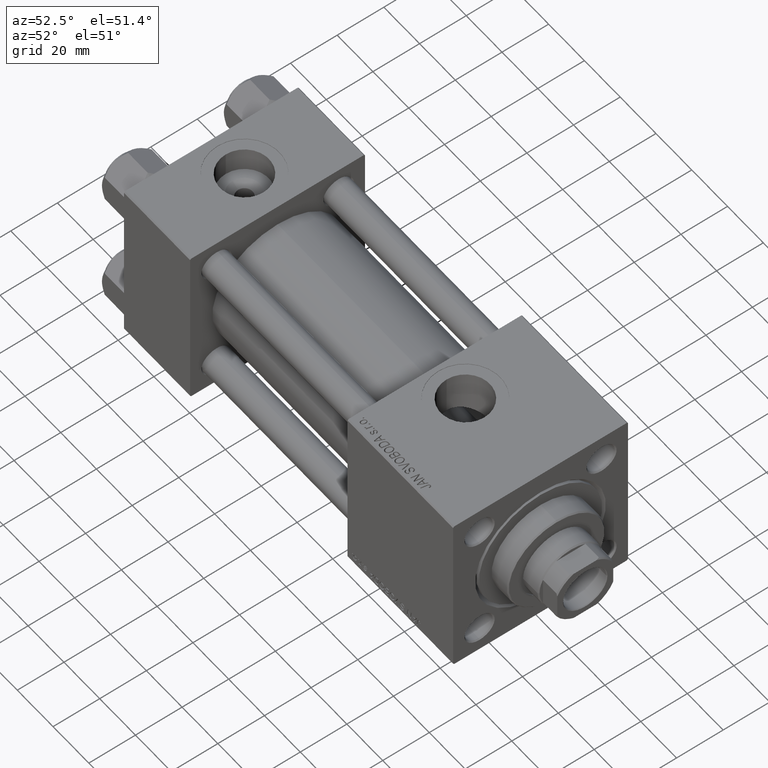
[diagram: clean part render]
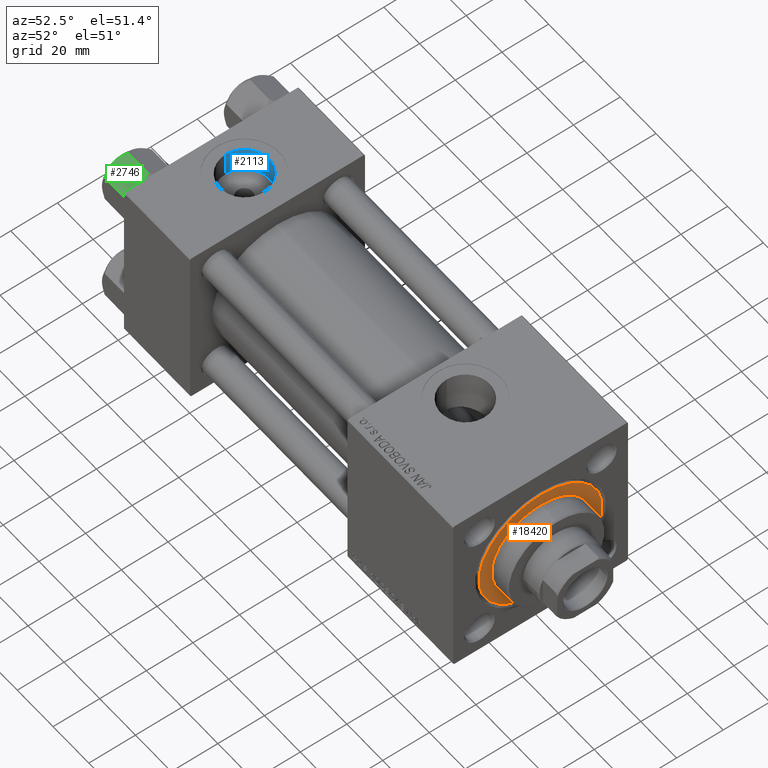
[diagram: same view with three faces highlighted in distinct colors, each labeled with its STEP entity id]
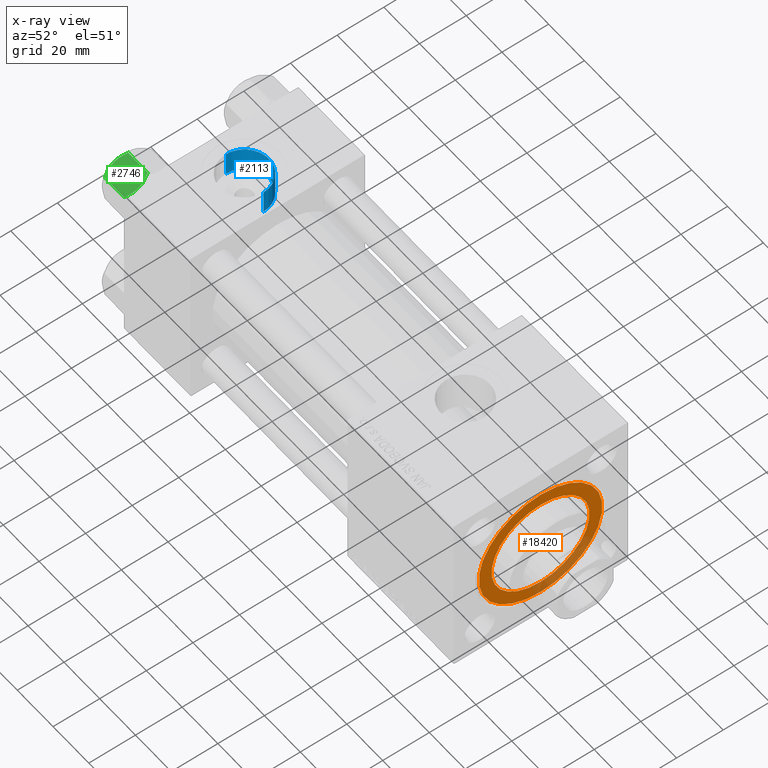
[diagram: x-ray of the same camera — body ghosted, the three highlighted faces saturated]
A machine part, auxiliary view with three faces highlighted in distinct colors.
The next image is the same camera in x-ray (body ghosted, the three faces saturated) — at least one of them is partly hidden behind the body in this view.
Their STEP definitions:

[orange] entity #18420 — the highlighted planar face has unit normal (1, 0, 0).
#286 = CARTESIAN_POINT ( 'NONE',  ( 0.000000000000000000, 0.000000000000000000, 28.69999999999999929 ) ) ;
#1522 = DIRECTION ( 'NONE',  ( 1.000000000000000000, 0.000000000000000000, -0.000000000000000000 ) ) ;
#1937 = CARTESIAN_POINT ( 'NONE',  ( -26.50000000000000355, 0.000000000000000000, 28.69999999999999929 ) ) ;
#3269 = VERTEX_POINT ( 'NONE', #33763 ) ;
#3648 = CIRCLE ( 'NONE', #31195, 21.00000000000000000 ) ;
#5007 = EDGE_CURVE ( 'NONE', #3269, #41342, #3648, .T. ) ;
#5507 = ORIENTED_EDGE ( 'NONE', *, *, #46643, .F. ) ;
#7762 = EDGE_LOOP ( 'NONE', ( #5507, #14903 ) ) ;
#8763 = DIRECTION ( 'NONE',  ( 0.000000000000000000, 0.000000000000000000, 1.000000000000000000 ) ) ;
#9141 = CARTESIAN_POINT ( 'NONE',  ( 0.000000000000000000, 0.000000000000000000, 28.69999999999999929 ) ) ;
#9207 = ORIENTED_EDGE ( 'NONE', *, *, #37766, .T. ) ;
#11765 = DIRECTION ( 'NONE',  ( 1.000000000000000000, 0.000000000000000000, 0.000000000000000000 ) ) ;
#12700 = FACE_BOUND ( 'NONE', #7762, .T. ) ;
#12955 = FACE_OUTER_BOUND ( 'NONE', #46846, .T. ) ;
#13615 = CIRCLE ( 'NONE', #14452, 21.00000000000000000 ) ;
#13694 = DIRECTION ( 'NONE',  ( 0.000000000000000000, 0.000000000000000000, 1.000000000000000000 ) ) ;
#14452 = AXIS2_PLACEMENT_3D ( 'NONE', #15108, #34633, #31081 ) ;
#14903 = ORIENTED_EDGE ( 'NONE', *, *, #5007, .F. ) ;
#15108 = CARTESIAN_POINT ( 'NONE',  ( 0.000000000000000000, 0.000000000000000000, 28.69999999999999929 ) ) ;
#16213 = AXIS2_PLACEMENT_3D ( 'NONE', #9141, #13694, #1522 ) ;
#17905 = VERTEX_POINT ( 'NONE', #1937 ) ;
#18420 = ADVANCED_FACE ( 'NONE', ( #12700, #12955 ), #28700, .T. ) ;
#19705 = CARTESIAN_POINT ( 'NONE',  ( 0.000000000000000000, 0.000000000000000000, 28.69999999999999929 ) ) ;
#19905 = DIRECTION ( 'NONE',  ( 0.000000000000000000, 0.000000000000000000, 1.000000000000000000 ) ) ;
#21743 = CARTESIAN_POINT ( 'NONE',  ( -21.00000000000000000, 0.000000000000000000, 28.69999999999999929 ) ) ;
#22989 = CIRCLE ( 'NONE', #37544, 26.50000000000000355 ) ;
#24264 = DIRECTION ( 'NONE',  ( 1.000000000000000000, 0.000000000000000000, 0.000000000000000000 ) ) ;
#27972 = DIRECTION ( 'NONE',  ( 0.000000000000000000, 0.000000000000000000, 1.000000000000000000 ) ) ;
#28000 = CIRCLE ( 'NONE', #35249, 26.50000000000000355 ) ;
#28700 = PLANE ( 'NONE',  #16213 ) ;
#30507 = EDGE_CURVE ( 'NONE', #37333, #17905, #22989, .T. ) ;
#31081 = DIRECTION ( 'NONE',  ( 1.000000000000000000, 0.000000000000000000, 0.000000000000000000 ) ) ;
#31195 = AXIS2_PLACEMENT_3D ( 'NONE', #19705, #8763, #24264 ) ;
#33763 = CARTESIAN_POINT ( 'NONE',  ( 21.00000000000000000, 2.571758278209441661E-15, 28.69999999999999929 ) ) ;
#34633 = DIRECTION ( 'NONE',  ( 0.000000000000000000, 0.000000000000000000, 1.000000000000000000 ) ) ;
#35249 = AXIS2_PLACEMENT_3D ( 'NONE', #42720, #19905, #11765 ) ;
#37333 = VERTEX_POINT ( 'NONE', #39856 ) ;
#37544 = AXIS2_PLACEMENT_3D ( 'NONE', #286, #27972, #39368 ) ;
#37766 = EDGE_CURVE ( 'NONE', #17905, #37333, #28000, .T. ) ;
#39368 = DIRECTION ( 'NONE',  ( 1.000000000000000000, 0.000000000000000000, 0.000000000000000000 ) ) ;
#39856 = CARTESIAN_POINT ( 'NONE',  ( 26.50000000000000355, 3.245314017740486554E-15, 28.69999999999999929 ) ) ;
#41342 = VERTEX_POINT ( 'NONE', #21743 ) ;
#42720 = CARTESIAN_POINT ( 'NONE',  ( 0.000000000000000000, 0.000000000000000000, 28.69999999999999929 ) ) ;
#46643 = EDGE_CURVE ( 'NONE', #41342, #3269, #13615, .T. ) ;
#46846 = EDGE_LOOP ( 'NONE', ( #9207, #46976 ) ) ;
#46976 = ORIENTED_EDGE ( 'NONE', *, *, #30507, .T. ) ;

[blue] entity #2113 — the highlighted cylindrical surface (edge-blend (fillet) strip) has radius 10.48 mm, axis along (0, 0, 1).
#1357 = EDGE_LOOP ( 'NONE', ( #17166, #49018, #13476, #12600 ) ) ;
#2113 = ADVANCED_FACE ( 'NONE', ( #22594 ), #49484, .F. ) ;
#2352 = EDGE_CURVE ( 'NONE', #29499, #40820, #13275, .T. ) ;
#4322 = CARTESIAN_POINT ( 'NONE',  ( 28.98000000000000043, -5.204170427930421283E-15, 26.69999999999999929 ) ) ;
#6767 = AXIS2_PLACEMENT_3D ( 'NONE', #32690, #9594, #35997 ) ;
#6918 = CARTESIAN_POINT ( 'NONE',  ( 8.019999999999999574, -3.920740582423995006E-15, 26.69999999999999929 ) ) ;
#7895 = CARTESIAN_POINT ( 'NONE',  ( 28.98000000000000043, -5.204170427930421283E-15, 37.29999999999999716 ) ) ;
#9594 = DIRECTION ( 'NONE',  ( 0.000000000000000000, 0.000000000000000000, 1.000000000000000000 ) ) ;
#11061 = CARTESIAN_POINT ( 'NONE',  ( 8.019999999999999574, -3.920740582423995006E-15, 37.29999999999999716 ) ) ;
#11624 = AXIS2_PLACEMENT_3D ( 'NONE', #40858, #29957, #41357 ) ;
#12600 = ORIENTED_EDGE ( 'NONE', *, *, #32864, .T. ) ;
#13275 = CIRCLE ( 'NONE', #6767, 10.48000000000000043 ) ;
#13476 = ORIENTED_EDGE ( 'NONE', *, *, #45294, .T. ) ;
#14967 = DIRECTION ( 'NONE',  ( -0.000000000000000000, -0.000000000000000000, 1.000000000000000000 ) ) ;
#17166 = ORIENTED_EDGE ( 'NONE', *, *, #46522, .F. ) ;
#18423 = LINE ( 'NONE', #41248, #18523 ) ;
#18523 = VECTOR ( 'NONE', #40512, 1000.000000000000000 ) ;
#20371 = VERTEX_POINT ( 'NONE', #7895 ) ;
#22594 = FACE_OUTER_BOUND ( 'NONE', #1357, .T. ) ;
#23084 = LINE ( 'NONE', #45920, #33027 ) ;
#29499 = VERTEX_POINT ( 'NONE', #4322 ) ;
#29740 = CARTESIAN_POINT ( 'NONE',  ( 18.50000000000000000, -5.204170427930421283E-15, 37.29999999999999716 ) ) ;
#29957 = DIRECTION ( 'NONE',  ( -0.000000000000000000, -0.000000000000000000, 1.000000000000000000 ) ) ;
#31204 = AXIS2_PLACEMENT_3D ( 'NONE', #29740, #45206, #37344 ) ;
#32690 = CARTESIAN_POINT ( 'NONE',  ( 18.50000000000000000, -5.204170427930421283E-15, 26.69999999999999929 ) ) ;
#32864 = EDGE_CURVE ( 'NONE', #20371, #36531, #40910, .T. ) ;
#33027 = VECTOR ( 'NONE', #14967, 1000.000000000000000 ) ;
#35997 = DIRECTION ( 'NONE',  ( 1.000000000000000000, 0.000000000000000000, 0.000000000000000000 ) ) ;
#36531 = VERTEX_POINT ( 'NONE', #11061 ) ;
#37344 = DIRECTION ( 'NONE',  ( 1.000000000000000000, 0.000000000000000000, 0.000000000000000000 ) ) ;
#40512 = DIRECTION ( 'NONE',  ( -0.000000000000000000, -0.000000000000000000, 1.000000000000000000 ) ) ;
#40820 = VERTEX_POINT ( 'NONE', #6918 ) ;
#40858 = CARTESIAN_POINT ( 'NONE',  ( 18.50000000000000000, -5.204170427930421283E-15, 26.69999999999999929 ) ) ;
#40910 = CIRCLE ( 'NONE', #31204, 10.48000000000000043 ) ;
#41248 = CARTESIAN_POINT ( 'NONE',  ( 8.019999999999999574, -3.920740582423995006E-15, 26.69999999999999929 ) ) ;
#41357 = DIRECTION ( 'NONE',  ( 1.000000000000000000, 0.000000000000000000, 0.000000000000000000 ) ) ;
#45206 = DIRECTION ( 'NONE',  ( 0.000000000000000000, 0.000000000000000000, 1.000000000000000000 ) ) ;
#45294 = EDGE_CURVE ( 'NONE', #29499, #20371, #23084, .T. ) ;
#45920 = CARTESIAN_POINT ( 'NONE',  ( 28.98000000000000043, -5.204170427930421283E-15, 26.69999999999999929 ) ) ;
#46522 = EDGE_CURVE ( 'NONE', #40820, #36531, #18423, .T. ) ;
#49018 = ORIENTED_EDGE ( 'NONE', *, *, #2352, .F. ) ;
#49484 = CYLINDRICAL_SURFACE ( 'NONE', #11624, 10.48000000000000043 ) ;

[green] entity #2746 — the highlighted planar face has unit normal (0, 0.5, -0.866).
#764 = CARTESIAN_POINT ( 'NONE',  ( -11.16498164529022219, 0.7881149087337359083, -1.101766453314949379 ) ) ;
#1202 = EDGE_CURVE ( 'NONE', #38864, #19597, #45849, .T. ) ;
#1247 = CARTESIAN_POINT ( 'NONE',  ( -8.209704053696567527, 5.906805847843725310, -14.00000000000000533 ) ) ;
#2667 = CARTESIAN_POINT ( 'NONE',  ( -9.227666995912096937, 4.143642311704127223, -13.96005881939308857 ) ) ;
#2746 = ADVANCED_FACE ( 'NONE', ( #40129 ), #44185, .F. ) ;
#4070 = CARTESIAN_POINT ( 'NONE',  ( -11.61999999999999922, 6.288644352490894150E-15, -14.00000000000000000 ) ) ;
#4375 = AXIS2_PLACEMENT_3D ( 'NONE', #40384, #5843, #48236 ) ;
#5843 = DIRECTION ( 'NONE',  ( 0.8660254037844385966, -0.5000000000000002220, 0.000000000000000000 ) ) ;
#6808 = EDGE_CURVE ( 'NONE', #32385, #10731, #34227, .T. ) ;
#7055 = CARTESIAN_POINT ( 'NONE',  ( -8.715000000000003411, 5.031607595987592774, 0.000000000000000000 ) ) ;
#7851 = CARTESIAN_POINT ( 'NONE',  ( -5.809999999999997833, 10.06321519197518022, -12.44321519197518455 ) ) ;
#7900 = ORIENTED_EDGE ( 'NONE', *, *, #20554, .F. ) ;
#8348 = CARTESIAN_POINT ( 'NONE',  ( -8.715000000000001634, 5.031607595987591885, -14.00000000000000000 ) ) ;
#9100 = CARTESIAN_POINT ( 'NONE',  ( -8.460569896449618099, 5.472293462311865753, 3.939644352451667145E-15 ) ) ;
#9350 = CARTESIAN_POINT ( 'NONE',  ( -7.700834831386344170, 6.788193195293096949, -0.1903979688073401122 ) ) ;
#9845 = CARTESIAN_POINT ( 'NONE',  ( -8.715000000000003411, 5.031607595987592774, 0.000000000000000000 ) ) ;
#10731 = VERTEX_POINT ( 'NONE', #17384 ) ;
#10789 = VECTOR ( 'NONE', #42292, 1000.000000000000000 ) ;
#11921 = CARTESIAN_POINT ( 'NONE',  ( -6.733375043383492020, 8.463882702393842550, -13.28854452935654962 ) ) ;
#12187 = CARTESIAN_POINT ( 'NONE',  ( -9.220295946303428636, 4.156409344131455796, 3.796401669593772542E-15 ) ) ;
#13385 = VECTOR ( 'NONE', #15517, 1000.000000000000000 ) ;
#13854 = CARTESIAN_POINT ( 'NONE',  ( -9.974696630283190757, 2.849749030213795109, -13.69973261901325934 ) ) ;
#15104 = CARTESIAN_POINT ( 'NONE',  ( -8.715000000000001634, 5.031607595987591885, -14.00000000000000000 ) ) ;
#15425 = EDGE_CURVE ( 'NONE', #39851, #38864, #17281, .T. ) ;
#15517 = DIRECTION ( 'NONE',  ( -0.000000000000000000, -0.000000000000000000, 1.000000000000000000 ) ) ;
#15521 = ORIENTED_EDGE ( 'NONE', *, *, #6808, .F. ) ;
#15997 = CARTESIAN_POINT ( 'NONE',  ( -8.715000000000003411, 5.031607595987592774, 0.000000000000000000 ) ) ;
#16983 = CARTESIAN_POINT ( 'NONE',  ( -7.455303369716805406, 7.213466161761384221, -0.3002673809867362764 ) ) ;
#17281 = B_SPLINE_CURVE_WITH_KNOTS ( 'NONE', 3,
 ( #8348, #1247, #42631, #11921, #27167, #7851 ),
 .UNSPECIFIED., .F., .F.,
 ( 4, 2, 4 ),
 ( 0.006022845781655582903, 0.009013049135303629819, 0.01200325248895167847 ),
 .UNSPECIFIED. ) ;
#17384 = CARTESIAN_POINT ( 'NONE',  ( -11.61999999999999922, 6.270720075409452187E-15, -1.556784808024810562 ) ) ;
#17965 = EDGE_LOOP ( 'NONE', ( #38927, #36544, #15521, #7900, #31821, #34768 ) ) ;
#18146 = LINE ( 'NONE', #4070, #13385 ) ;
#19204 = B_SPLINE_CURVE_WITH_KNOTS ( 'NONE', 3,
 ( #39814, #20549, #44115, #16983, #9350, #28906, #9100, #9845 ),
 .UNSPECIFIED., .F., .F.,
 ( 4, 2, 2, 4 ),
 ( 2.544312114902182352E-07, 0.003011550106433540791, 0.004517197944044565316, 0.006022845781655589842 ),
 .UNSPECIFIED. ) ;
#19597 = VERTEX_POINT ( 'NONE', #27452 ) ;
#20336 = CARTESIAN_POINT ( 'NONE',  ( -11.61999999999999922, 6.270720075409452187E-15, -1.556784808024810562 ) ) ;
#20549 = CARTESIAN_POINT ( 'NONE',  ( -6.265545725125282850, 9.274186850887385702, -1.101239082899533539 ) ) ;
#20554 = EDGE_CURVE ( 'NONE', #19597, #32385, #19204, .T. ) ;
#21990 = CARTESIAN_POINT ( 'NONE',  ( -10.69859855102501101, 1.595914123792268491, -13.28585617404753627 ) ) ;
#22007 = CARTESIAN_POINT ( 'NONE',  ( -11.61999999999999922, 6.270720075510426383E-15, -12.44321519197518811 ) ) ;
#24951 = VERTEX_POINT ( 'NONE', #22007 ) ;
#27167 = CARTESIAN_POINT ( 'NONE',  ( -6.265018354709776638, 9.275100283241455301, -12.89823354668505218 ) ) ;
#27452 = CARTESIAN_POINT ( 'NONE',  ( -5.809999999999997833, 10.06321519197518022, -1.556784808024814115 ) ) ;
#28906 = CARTESIAN_POINT ( 'NONE',  ( -8.202333004087897450, 5.919572880271055659, -0.03994118060690620559 ) ) ;
#29851 = CARTESIAN_POINT ( 'NONE',  ( -11.16445427487471598, 0.7890283410878030645, -12.89876091710047312 ) ) ;
#30665 = B_SPLINE_CURVE_WITH_KNOTS ( 'NONE', 3,
 ( #49119, #29851, #21990, #13854, #33135, #2667, #45314, #41005 ),
 .UNSPECIFIED., .F., .F.,
 ( 4, 2, 2, 4 ),
 ( 2.544312114905218436E-07, 0.003011550106433537755, 0.004517197944044560980, 0.006022845781655582903 ),
 .UNSPECIFIED. ) ;
#31231 = CARTESIAN_POINT ( 'NONE',  ( -10.69662495661650148, 1.599332489581337668, -0.7114554706434472742 ) ) ;
#31485 = CARTESIAN_POINT ( 'NONE',  ( -9.716999946243694453, 3.296092779912229265, -0.1545239700039824915 ) ) ;
#31821 = ORIENTED_EDGE ( 'NONE', *, *, #1202, .F. ) ;
#32385 = VERTEX_POINT ( 'NONE', #7055 ) ;
#33135 = CARTESIAN_POINT ( 'NONE',  ( -9.729165168613649328, 3.275021996682086822, -13.80960203119265906 ) ) ;
#33924 = EDGE_CURVE ( 'NONE', #24951, #10731, #18146, .T. ) ;
#34227 = B_SPLINE_CURVE_WITH_KNOTS ( 'NONE', 3,
 ( #15997, #12187, #31485, #31231, #764, #20336 ),
 .UNSPECIFIED., .F., .F.,
 ( 4, 2, 4 ),
 ( 0.006022845781655589842, 0.009013049135303633289, 0.01200325248895167674 ),
 .UNSPECIFIED. ) ;
#34768 = ORIENTED_EDGE ( 'NONE', *, *, #15425, .F. ) ;
#35237 = EDGE_CURVE ( 'NONE', #24951, #39851, #30665, .T. ) ;
#36544 = ORIENTED_EDGE ( 'NONE', *, *, #33924, .T. ) ;
#38864 = VERTEX_POINT ( 'NONE', #44674 ) ;
#38927 = ORIENTED_EDGE ( 'NONE', *, *, #35237, .F. ) ;
#39814 = CARTESIAN_POINT ( 'NONE',  ( -5.809999999999997833, 10.06321519197518022, -1.556784808024814115 ) ) ;
#39851 = VERTEX_POINT ( 'NONE', #15104 ) ;
#40129 = FACE_OUTER_BOUND ( 'NONE', #17965, .T. ) ;
#40384 = CARTESIAN_POINT ( 'NONE',  ( -11.61999999999999922, 6.288644352490894150E-15, -14.00000000000000000 ) ) ;
#41005 = CARTESIAN_POINT ( 'NONE',  ( -8.715000000000001634, 5.031607595987591885, -14.00000000000000000 ) ) ;
#42292 = DIRECTION ( 'NONE',  ( -0.000000000000000000, -0.000000000000000000, 1.000000000000000000 ) ) ;
#42631 = CARTESIAN_POINT ( 'NONE',  ( -7.713000053756302599, 6.767122412062954062, -13.84547602999601601 ) ) ;
#44115 = CARTESIAN_POINT ( 'NONE',  ( -6.731401448974986934, 8.467301068182916168, -0.7141438259524646170 ) ) ;
#44185 = PLANE ( 'NONE',  #4375 ) ;
#44674 = CARTESIAN_POINT ( 'NONE',  ( -5.809999999999997833, 10.06321519197518022, -12.44321519197518455 ) ) ;
#45314 = CARTESIAN_POINT ( 'NONE',  ( -8.969430103550378064, 4.590921729663314466, -14.00000000000000178 ) ) ;
#45849 = LINE ( 'NONE', #49659, #10789 ) ;
#48236 = DIRECTION ( 'NONE',  ( 0.5000000000000001110, 0.8660254037844384856, 0.000000000000000000 ) ) ;
#49119 = CARTESIAN_POINT ( 'NONE',  ( -11.61999999999999922, 6.270720075510426383E-15, -12.44321519197518811 ) ) ;
#49659 = CARTESIAN_POINT ( 'NONE',  ( -5.809999999999997833, 10.06321519197518022, -14.00000000000000000 ) ) ;